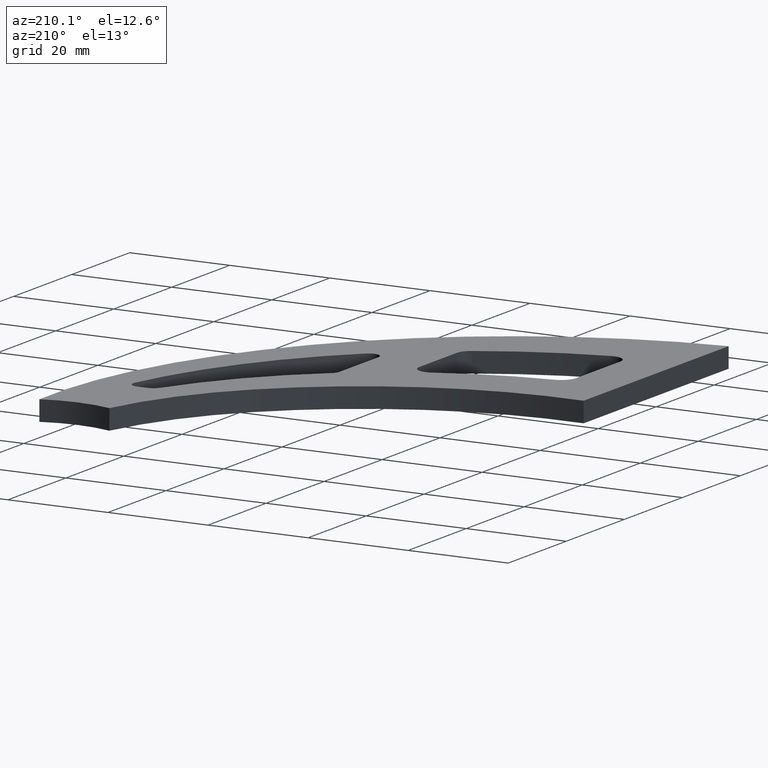
[diagram: clean part render]
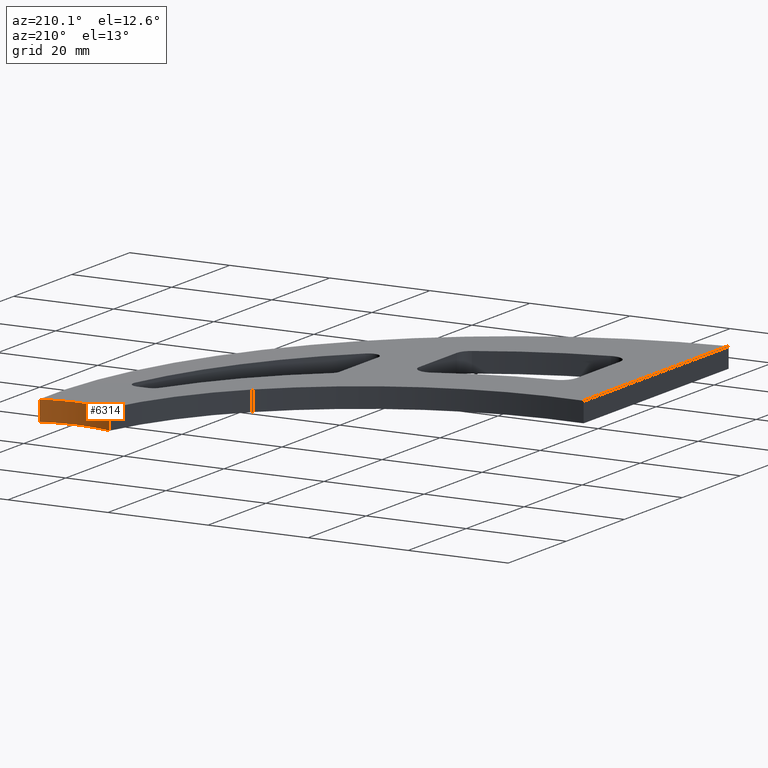
[diagram: same view with one face highlighted and labeled with its STEP entity id]
A machine part, auxiliary view. The second image highlights one B-rep face of the part: STEP entity #6314.
In plain terms, the highlighted cylindrical surface (partial cylindrical patch) has radius 21.2 mm, axis along (-0, -0, -1).
Its self-contained STEP definition (entity closure, byte-faithful):
#723 = EDGE_CURVE ( 'NONE', #2153, #1568, #7954, .T. ) ;
#890 = ORIENTED_EDGE ( 'NONE', *, *, #3836, .F. ) ;
#1139 = EDGE_CURVE ( 'NONE', #2153, #11892, #9823, .T. ) ;
#1568 = VERTEX_POINT ( 'NONE', #4572 ) ;
#2153 = VERTEX_POINT ( 'NONE', #10172 ) ;
#3265 = DIRECTION ( 'NONE',  ( -0.000000000000000000, -0.000000000000000000, -1.000000000000000000 ) ) ;
#3674 = DIRECTION ( 'NONE',  ( 1.000000000000000000, 0.000000000000000000, 0.000000000000000000 ) ) ;
#3764 = CARTESIAN_POINT ( 'NONE',  ( 74.99999999999998579, 91.20000000000000284, -2.000000000000000000 ) ) ;
#3836 = EDGE_CURVE ( 'NONE', #1568, #4115, #11431, .T. ) ;
#4115 = VERTEX_POINT ( 'NONE', #10344 ) ;
#4161 = EDGE_LOOP ( 'NONE', ( #890, #11386, #6546, #6620 ) ) ;
#4318 = CARTESIAN_POINT ( 'NONE',  ( 81.99999999999997158, 71.18900302333739205, 2.000000000000000000 ) ) ;
#4572 = CARTESIAN_POINT ( 'NONE',  ( 68.00000000000000000, 71.18900302333739205, -2.000000000000000000 ) ) ;
#4629 = CARTESIAN_POINT ( 'NONE',  ( 68.00000000000000000, 71.18900302333739205, 2.000000000000000000 ) ) ;
#6083 = CARTESIAN_POINT ( 'NONE',  ( 74.99999999999998579, 91.20000000000000284, 2.000000000000000000 ) ) ;
#6314 = ADVANCED_FACE ( 'NONE', ( #7900 ), #11057, .F. ) ;
#6546 = ORIENTED_EDGE ( 'NONE', *, *, #1139, .T. ) ;
#6620 = ORIENTED_EDGE ( 'NONE', *, *, #12375, .T. ) ;
#7090 = AXIS2_PLACEMENT_3D ( 'NONE', #3764, #10824, #3674 ) ;
#7309 = VECTOR ( 'NONE', #7674, 1000.000000000000000 ) ;
#7640 = DIRECTION ( 'NONE',  ( -0.000000000000000000, 0.000000000000000000, 1.000000000000000000 ) ) ;
#7674 = DIRECTION ( 'NONE',  ( -0.000000000000000000, -0.000000000000000000, -1.000000000000000000 ) ) ;
#7900 = FACE_OUTER_BOUND ( 'NONE', #4161, .T. ) ;
#7954 = LINE ( 'NONE', #4629, #7309 ) ;
#8308 = LINE ( 'NONE', #4318, #10821 ) ;
#8759 = CARTESIAN_POINT ( 'NONE',  ( 74.99999999999998579, 91.20000000000000284, 2.000000000000000000 ) ) ;
#9205 = DIRECTION ( 'NONE',  ( -0.000000000000000000, -0.000000000000000000, -1.000000000000000000 ) ) ;
#9454 = AXIS2_PLACEMENT_3D ( 'NONE', #8759, #7640, #9785 ) ;
#9785 = DIRECTION ( 'NONE',  ( 1.000000000000000000, 0.000000000000000000, 0.000000000000000000 ) ) ;
#9823 = CIRCLE ( 'NONE', #9454, 21.19999999999999574 ) ;
#9992 = DIRECTION ( 'NONE',  ( -1.000000000000000000, 0.000000000000000000, 0.000000000000000000 ) ) ;
#10172 = CARTESIAN_POINT ( 'NONE',  ( 68.00000000000000000, 71.18900302333739205, 2.000000000000000000 ) ) ;
#10344 = CARTESIAN_POINT ( 'NONE',  ( 81.99999999999997158, 71.18900302333739205, -2.000000000000000000 ) ) ;
#10821 = VECTOR ( 'NONE', #3265, 1000.000000000000000 ) ;
#10824 = DIRECTION ( 'NONE',  ( -0.000000000000000000, 0.000000000000000000, 1.000000000000000000 ) ) ;
#11057 = CYLINDRICAL_SURFACE ( 'NONE', #11926, 21.20000000000000284 ) ;
#11386 = ORIENTED_EDGE ( 'NONE', *, *, #723, .F. ) ;
#11431 = CIRCLE ( 'NONE', #7090, 21.19999999999999574 ) ;
#11892 = VERTEX_POINT ( 'NONE', #12208 ) ;
#11926 = AXIS2_PLACEMENT_3D ( 'NONE', #6083, #9205, #9992 ) ;
#12208 = CARTESIAN_POINT ( 'NONE',  ( 81.99999999999997158, 71.18900302333739205, 2.000000000000000000 ) ) ;
#12375 = EDGE_CURVE ( 'NONE', #11892, #4115, #8308, .T. ) ;